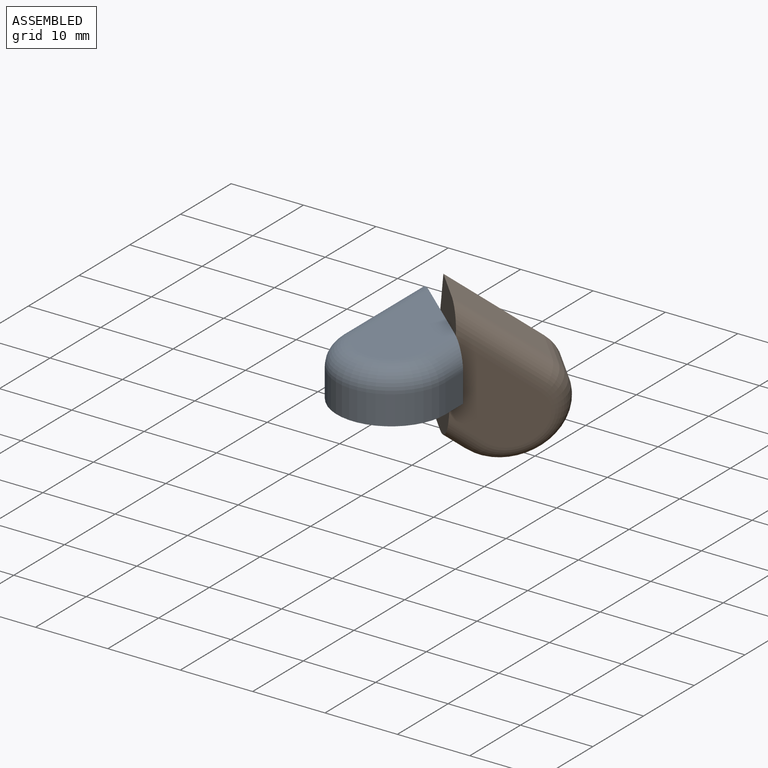
[diagram: assembled view]
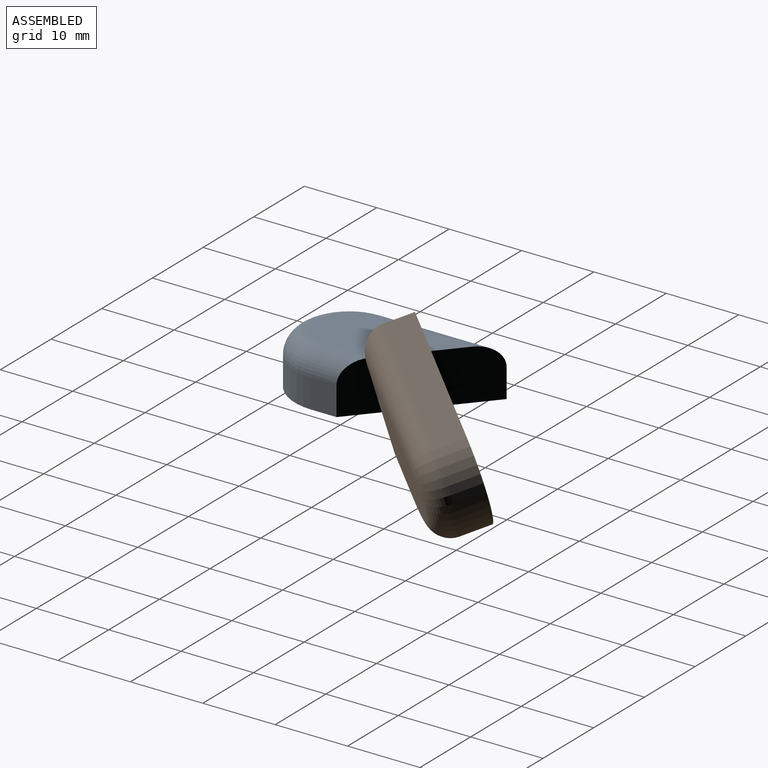
[diagram: assembled view, second angle]
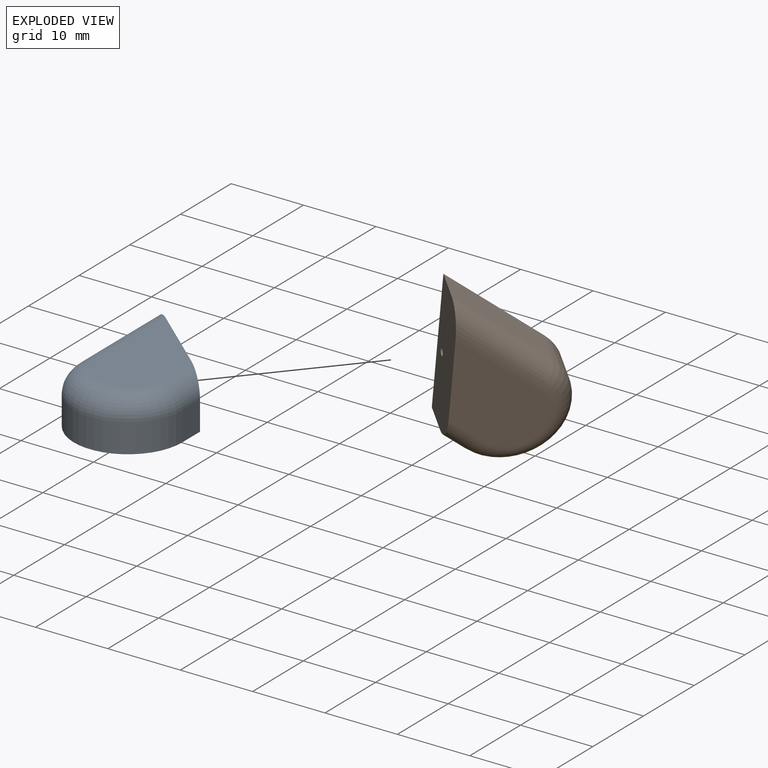
[diagram: exploded view]
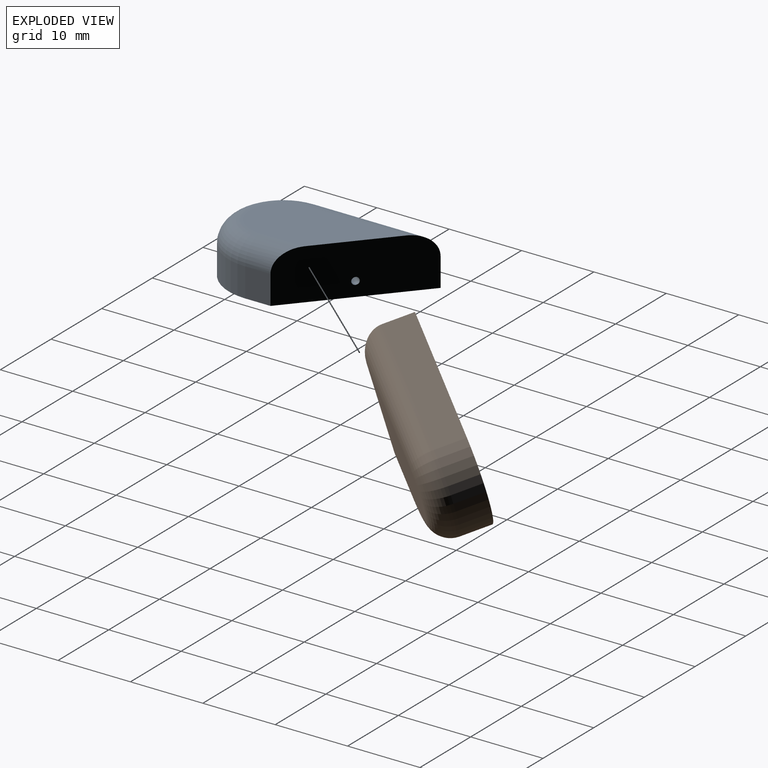
[diagram: exploded view, second angle]
ASSEMBLY  parts=2 mates=2
PART A: 11 faces, bbox 16.2x24.6x7 mm
  f0: plane 15x13mm, normal (0.65,0.76,0), area 133mm2, adj f1,f3,f4,f5,f6,f8,f9
  f1: plane 16.5x4mm, normal (-1,0,0), area 66mm2, adj f0,f2,f5,f8
  f2: cylinder r=7.5mm len=15mm, axis (0,0,-1), area 94.2mm2, adj f1,f3,f5,f7
  f3: plane 4x3.5mm, normal (1,0,0), area 14mm2, adj f0,f2,f5,f6
  f4: plane 18.4x9mm, normal (0,0,1), area 121.8mm2, adj f0,f6,f7,f8
  f5: plane 24x15mm, normal (0,0,-1), area 238.4mm2, adj f0,f1,f2,f3
  f6: cylinder r=3mm len=6.1mm, axis (0,-1,0), area 20.9mm2, adj f0,f3,f4,f7
  f7: torus R=4.5mm, axis (0,0,1), area 94.9mm2, adj f2,f4,f6,f8
  f8: cylinder r=3mm len=16.5mm, axis (0,1,0), area 73.3mm2, adj f0,f1,f4,f7
  f9: cylinder r=0.5mm len=5.94mm, axis (0.65,0.76,0), area 22mm2, adj f0,f10
  f10: plane 1x0.76mm, normal (0.65,0.76,0), area 0.8mm2, adj f9
PART B: 11 faces, bbox 16.2x24.6x7 mm
  f0: plane 15x13mm, normal (0.65,0.76,0), area 133mm2, adj f1,f3,f4,f5,f6,f8,f9
  f1: plane 16.5x4mm, normal (-1,0,0), area 66mm2, adj f0,f2,f4,f8
  f2: cylinder r=7.5mm len=15mm, axis (0,0,-1), area 94.2mm2, adj f1,f3,f4,f7
  f3: plane 4x3.5mm, normal (1,0,0), area 14mm2, adj f0,f2,f4,f6
  f4: plane 24x15mm, normal (0,0,1), area 238.4mm2, adj f0,f1,f2,f3
  f5: plane 18.4x9mm, normal (0,0,-1), area 121.8mm2, adj f0,f6,f7,f8
  f6: cylinder r=3mm len=6.1mm, axis (0,1,0), area 20.9mm2, adj f0,f3,f5,f7
  f7: torus R=4.5mm, axis (0,0,1), area 94.9mm2, adj f2,f5,f6,f8
  f8: cylinder r=3mm len=16.5mm, axis (0,-1,0), area 73.3mm2, adj f0,f1,f5,f7
  f9: cylinder r=0.5mm len=4.43mm, axis (0.65,0.76,0), area 15.7mm2, adj f0,f10
  f10: plane 1x0.76mm, normal (0.65,0.76,0), area 0.8mm2, adj f9
PLACE A t=(-6.4,-1.27,-4.11)mm fixed
PLACE B rot(axis=(-0.46,0.4,0.8),180deg) t=(-2.76,-2.42,-3.46)mm
MATE planar A.f0 <-> B.f0  axis (0.65,0.76,0) through (-1.9,-3.16,-0.11)mm
MATE revolute A.f9 <-> B.f9  axis (0.65,0.76,0) through (-6.4,0.73,-2.11)mm
